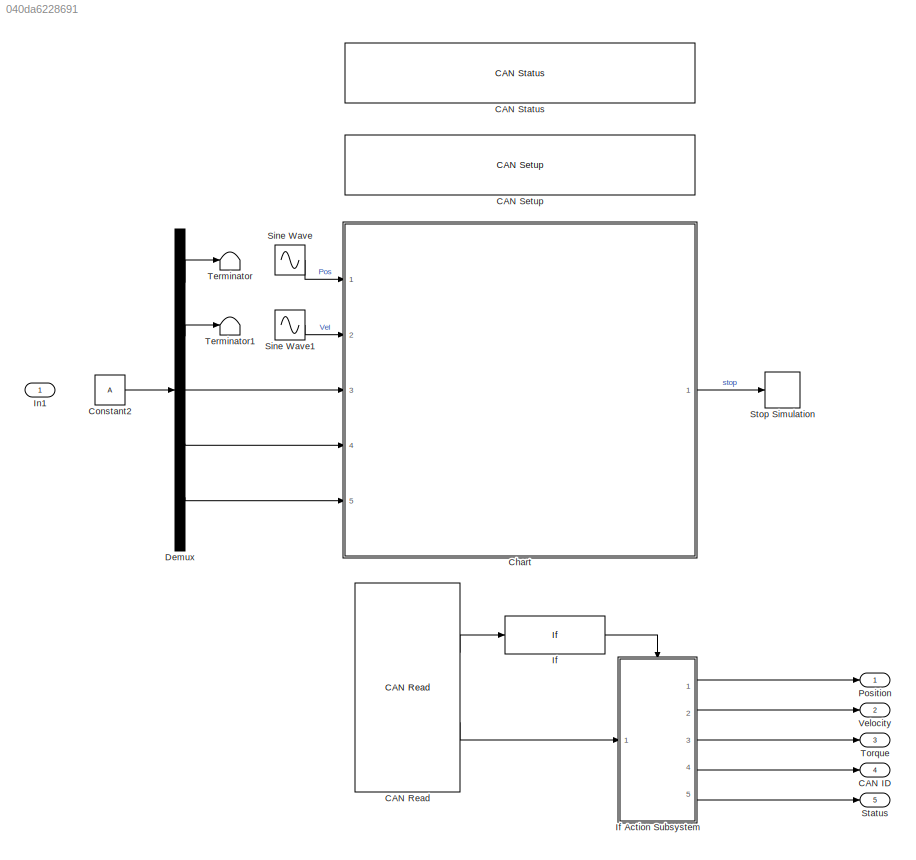
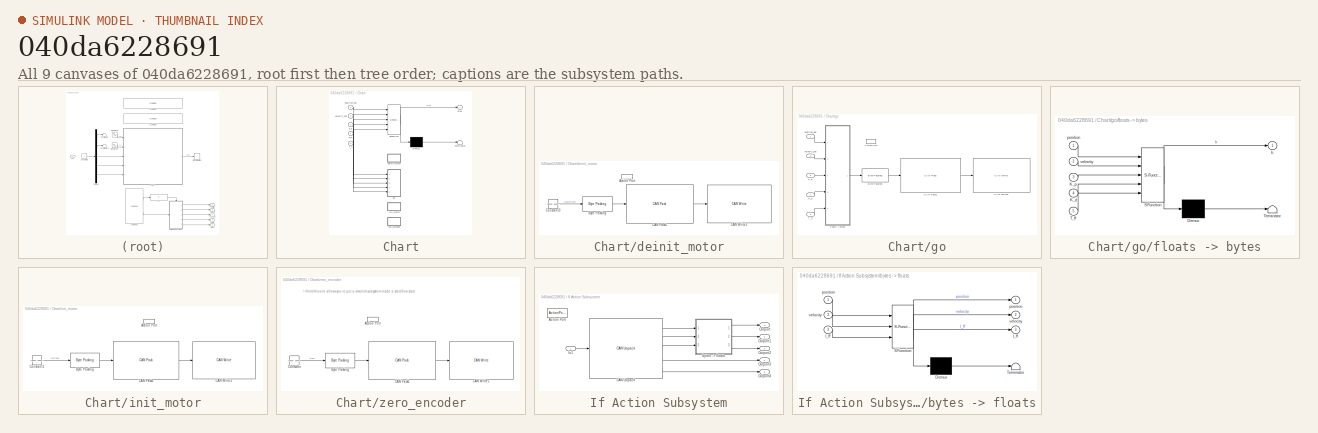
[diagram: thumbnail index - all 9 canvases of the model, root first then tree order]
MODEL slx_040da6228691
KIND model
CONFIG AbsTol = auto
CONFIG EnableMultiTasking = off
CONFIG FixedStep = .001
CONFIG MaxStep = auto
CONFIG MinStep = auto
CONFIG RelTol = 1e-3
CONFIG SampleTimeConstraint = Unconstrained
CONFIG SolverName = FixedStepAuto
CONFIG StartTime = 0.0
CONFIG StopTime = 30.0
BLOCK [Outport] CAN ID
  Port = 4
BLOCK [Reference] CAN Read  REF=speedgoatlib_IO691/CAN Read
  Ports = [0, 2]
  SourceBlock = speedgoatlib_IO691/CAN Read
  SourceProductName = Simulink Real-Time: Speedgoat I/O Blockset
  SourceType = read_IO691
BLOCK [Reference] CAN Setup   REF=speedgoatlib_IO691/CAN Setup 
  Ports = []
  SourceBlock = speedgoatlib_IO691/CAN Setup
  SourceProductName = Simulink Real-Time: Speedgoat I/O Blockset
  SourceType = setup_IO691
BLOCK [Reference] CAN Status  REF=speedgoatlib_IO691/CAN Status
  Ports = []
  SourceBlock = speedgoatlib_IO691/CAN Status
  SourceProductName = Simulink Real-Time: Speedgoat I/O Blockset
  SourceType = status_IO691
  UserDataPersistent = on
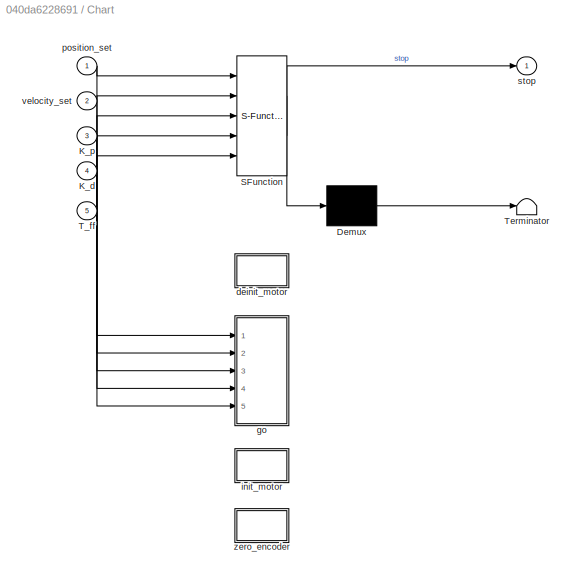
BLOCK [SubSystem] Chart
  ErrorFcn = Stateflow.Translate.translate
  PermitHierarchicalResolution = ExplicitOnly
  Ports = [5, 1]
  RequestExecContextInheritance = off
  SFBlockType = Chart
  TreatAsAtomicUnit = on
BLOCK [Demux] Chart/ Demux 
  Outputs = 1
  Ports = [1, 1]
BLOCK [S-Function] Chart/ SFunction 
  EnableBusSupport = on
  FunctionName = sf_sfun
  PortCounts = [5 2]
  Ports = [5, 2]
  SFcnIsStateOwnerBlock = off
  SFunctionDeploymentMode = off
  Tag = Stateflow S-Function 3
BLOCK [Terminator] Chart/ Terminator 
BLOCK [Inport] Chart/K_d
  Port = 4
BLOCK [Inport] Chart/K_p
  Port = 3
BLOCK [Inport] Chart/T_ff
  Port = 5
BLOCK [SubSystem] Chart/deinit_motor
  Ports = [0, 0, 0, 0, 0, 0, 0, 1]
  PreDeleteFcn = Stateflow.SLINSF.SimulinkMan.removePreDeleteFcn
  RequestExecContextInheritance = off
  UndoDeleteFcn = Stateflow.SLINSF.SimulinkMan.restorePreDeleteFcn
BLOCK [ActionPort] Chart/deinit_motor/Action Port
  CopyFcn = Stateflow.SLINSF.SimulinkMan.removeBlockPreDeleteFcn
  PreDeleteFcn = Stateflow.SLINSF.SimulinkMan.unsafePredeleteFcn
BLOCK [Reference] Chart/deinit_motor/Byte Packing  REF=slrealtimeutilitieslib/Byte Packing
  Ports = [1, 1]
  SourceBlock = slrealtimeutilitieslib/Byte Packing
  SourceProductBaseCode = XP
  SourceType = slrealtimebytepacking
BLOCK [Reference] Chart/deinit_motor/CAN Pack1  REF=canmsglib/CAN Pack
  Ports = [1, 1]
  SourceBlock = canmsglib/CAN Pack
  SourceProductBaseCode = ME,XP,VN
  SourceType = CAN Pack
BLOCK [Reference] Chart/deinit_motor/CAN Write1  REF=speedgoatlib_IO691/CAN Write
  Ports = [1]
  SourceBlock = speedgoatlib_IO691/CAN Write
  SourceProductName = Simulink Real-Time: Speedgoat I/O Blockset
  SourceType = write_IO691
BLOCK [Constant] Chart/deinit_motor/Constant3
  Value = [0xFF, 0xFF, 0xFF, 0xFF, 0xFF, 0xFF, 0xFF, 0xFD]
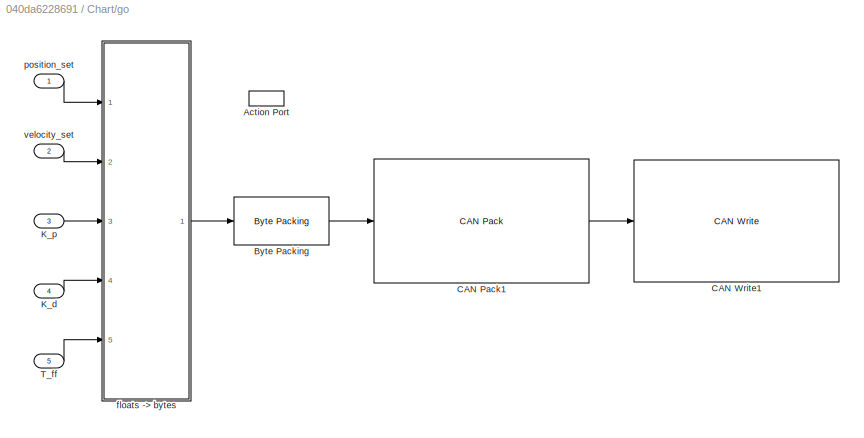
BLOCK [SubSystem] Chart/go
  Ports = [5, 0, 0, 0, 0, 0, 0, 1]
  PreDeleteFcn = Stateflow.SLINSF.SimulinkMan.removePreDeleteFcn
  RequestExecContextInheritance = off
  UndoDeleteFcn = Stateflow.SLINSF.SimulinkMan.restorePreDeleteFcn
BLOCK [ActionPort] Chart/go/Action Port
  CopyFcn = Stateflow.SLINSF.SimulinkMan.removeBlockPreDeleteFcn
  PreDeleteFcn = Stateflow.SLINSF.SimulinkMan.unsafePredeleteFcn
BLOCK [Reference] Chart/go/Byte Packing  REF=slrealtimeutilitieslib/Byte Packing
  Ports = [1, 1]
  SourceBlock = slrealtimeutilitieslib/Byte Packing
  SourceProductBaseCode = XP
  SourceType = slrealtimebytepacking
BLOCK [Reference] Chart/go/CAN Pack1  REF=canmsglib/CAN Pack
  Ports = [1, 1]
  SourceBlock = canmsglib/CAN Pack
  SourceProductBaseCode = ME,XP,VN
  SourceType = CAN Pack
BLOCK [Reference] Chart/go/CAN Write1  REF=speedgoatlib_IO691/CAN Write
  Ports = [1]
  SourceBlock = speedgoatlib_IO691/CAN Write
  SourceProductName = Simulink Real-Time: Speedgoat I/O Blockset
  SourceType = write_IO691
BLOCK [Inport] Chart/go/K_d
  Port = 4
BLOCK [Inport] Chart/go/K_p
  Port = 3
BLOCK [Inport] Chart/go/T_ff
  Port = 5
BLOCK [SubSystem] Chart/go/floats -> bytes
  ErrorFcn = Stateflow.Translate.translate
  PermitHierarchicalResolution = ExplicitOnly
  Ports = [5, 1]
  RequestExecContextInheritance = off
  SFBlockType = MATLAB Function
  TreatAsAtomicUnit = on
BLOCK [Demux] Chart/go/floats -> bytes/ Demux 
  Outputs = 1
  Ports = [1, 1]
BLOCK [S-Function] Chart/go/floats -> bytes/ SFunction 
  EnableBusSupport = on
  FunctionName = sf_sfun
  PortCounts = [5 2]
  Ports = [5, 2]
  SFcnIsStateOwnerBlock = off
  SFunctionDeploymentMode = off
  Tag = Stateflow S-Function 1
BLOCK [Terminator] Chart/go/floats -> bytes/ Terminator 
BLOCK [Inport] Chart/go/floats -> bytes/K_d
  Port = 4
BLOCK [Inport] Chart/go/floats -> bytes/K_p
  Port = 3
BLOCK [Inport] Chart/go/floats -> bytes/T_ff
  Port = 5
BLOCK [Outport] Chart/go/floats -> bytes/b
BLOCK [Inport] Chart/go/floats -> bytes/position
BLOCK [Inport] Chart/go/floats -> bytes/velocity
  Port = 2
BLOCK [Inport] Chart/go/position_set
BLOCK [Inport] Chart/go/velocity_set
  Port = 2
BLOCK [SubSystem] Chart/init_motor
  Ports = [0, 0, 0, 0, 0, 0, 0, 1]
  PreDeleteFcn = Stateflow.SLINSF.SimulinkMan.removePreDeleteFcn
  RequestExecContextInheritance = off
  UndoDeleteFcn = Stateflow.SLINSF.SimulinkMan.restorePreDeleteFcn
BLOCK [ActionPort] Chart/init_motor/Action Port
  CopyFcn = Stateflow.SLINSF.SimulinkMan.removeBlockPreDeleteFcn
  PreDeleteFcn = Stateflow.SLINSF.SimulinkMan.unsafePredeleteFcn
BLOCK [Reference] Chart/init_motor/Byte Packing  REF=slrealtimeutilitieslib/Byte Packing
  Ports = [1, 1]
  SourceBlock = slrealtimeutilitieslib/Byte Packing
  SourceProductBaseCode = XP
  SourceType = slrealtimebytepacking
BLOCK [Reference] Chart/init_motor/CAN Pack1  REF=canmsglib/CAN Pack
  Ports = [1, 1]
  SourceBlock = canmsglib/CAN Pack
  SourceProductBaseCode = ME,XP,VN
  SourceType = CAN Pack
BLOCK [Reference] Chart/init_motor/CAN Write1  REF=speedgoatlib_IO691/CAN Write
  Ports = [1]
  SourceBlock = speedgoatlib_IO691/CAN Write
  SourceProductName = Simulink Real-Time: Speedgoat I/O Blockset
  SourceType = write_IO691
BLOCK [Constant] Chart/init_motor/Constant1
  Value = [0xFF, 0xFF, 0xFF, 0xFF, 0xFF, 0xFF, 0xFF, 0xFC]
BLOCK [Inport] Chart/position_set
BLOCK [Outport] Chart/stop
BLOCK [Inport] Chart/velocity_set
  Port = 2
BLOCK [SubSystem] Chart/zero_encoder
  Ports = [0, 0, 0, 0, 0, 0, 0, 1]
  PreDeleteFcn = Stateflow.SLINSF.SimulinkMan.removePreDeleteFcn
  RequestExecContextInheritance = off
  UndoDeleteFcn = Stateflow.SLINSF.SimulinkMan.restorePreDeleteFcn
BLOCK [ActionPort] Chart/zero_encoder/Action Port
  CopyFcn = Stateflow.SLINSF.SimulinkMan.removeBlockPreDeleteFcn
  PreDeleteFcn = Stateflow.SLINSF.SimulinkMan.unsafePredeleteFcn
BLOCK [Reference] Chart/zero_encoder/Byte Packing  REF=slrealtimeutilitieslib/Byte Packing
  Ports = [1, 1]
  SourceBlock = slrealtimeutilitieslib/Byte Packing
  SourceProductBaseCode = XP
  SourceType = slrealtimebytepacking
BLOCK [Reference] Chart/zero_encoder/CAN Pack1  REF=canmsglib/CAN Pack
  Ports = [1, 1]
  SourceBlock = canmsglib/CAN Pack
  SourceProductBaseCode = ME,XP,VN
  SourceType = CAN Pack
BLOCK [Reference] Chart/zero_encoder/CAN Write1  REF=speedgoatlib_IO691/CAN Write
  Ports = [1]
  SourceBlock = speedgoatlib_IO691/CAN Write
  SourceProductName = Simulink Real-Time: Speedgoat I/O Blockset
  SourceType = write_IO691
BLOCK [Constant] Chart/zero_encoder/Constant
  Value = [0xFF, 0xFF, 0xFF, 0xFF, 0xFF, 0xFF, 0xFF, 0xFE]
BLOCK [Constant] Constant2
  Value = A
BLOCK [Demux] Demux
  Outputs = 5
  Ports = [1, 5]
BLOCK [If] If
  IfExpression = u1 ~= 0
  Ports = [1, 1]
  ShowElse = off
BLOCK [SubSystem] If Action Subsystem
  Ports = [1, 5, 0, 0, 0, 0, 0, 1]
  RequestExecContextInheritance = off
  TreatAsAtomicUnit = on
BLOCK [ActionPort] If Action Subsystem/Action Port
  ActionPortLabel = if(u1 ~= 0)
BLOCK [Reference] If Action Subsystem/CAN Unpack  REF=canmsglib/CAN Unpack
  Ports = [1, 5]
  SourceBlock = canmsglib/CAN Unpack
  SourceProductBaseCode = ME,XP,VN
  SourceType = CAN Unpack
BLOCK [Inport] If Action Subsystem/In1
BLOCK [Outport] If Action Subsystem/Outport
BLOCK [Outport] If Action Subsystem/Outport1
  Port = 2
BLOCK [Outport] If Action Subsystem/Outport2
  Port = 3
BLOCK [Outport] If Action Subsystem/Outport3
  Port = 4
BLOCK [Outport] If Action Subsystem/Outport4
  Port = 5
BLOCK [SubSystem] If Action Subsystem/bytes -> floats
  ErrorFcn = Stateflow.Translate.translate
  PermitHierarchicalResolution = ExplicitOnly
  Ports = [3, 3]
  RequestExecContextInheritance = off
  SFBlockType = MATLAB Function
  TreatAsAtomicUnit = on
BLOCK [Demux] If Action Subsystem/bytes -> floats/ Demux 
  Outputs = 1
  Ports = [1, 1]
BLOCK [S-Function] If Action Subsystem/bytes -> floats/ SFunction 
  EnableBusSupport = on
  FunctionName = sf_sfun
  PortCounts = [3 4]
  Ports = [3, 4]
  SFcnIsStateOwnerBlock = off
  SFunctionDeploymentMode = off
  Tag = Stateflow S-Function 2
BLOCK [Terminator] If Action Subsystem/bytes -> floats/ Terminator 
BLOCK [Outport] If Action Subsystem/bytes -> floats/I_ff
  Port = 3
BLOCK [Inport] If Action Subsystem/bytes -> floats/I_ff 
  Port = 3
BLOCK [Outport] If Action Subsystem/bytes -> floats/position
BLOCK [Inport] If Action Subsystem/bytes -> floats/position 
BLOCK [Outport] If Action Subsystem/bytes -> floats/velocity
  Port = 2
BLOCK [Inport] If Action Subsystem/bytes -> floats/velocity 
  Port = 2
BLOCK [Inport] In1
BLOCK [Outport] Position
BLOCK [Sin] Sine Wave
  Amplitude = pi/4
  Frequency = 2*pi/3
  Ports = [0, 1]
  SampleTime = 0
BLOCK [Sin] Sine Wave1
  Amplitude = pi/4
  Frequency = 2*pi/3
  Phase = pi/2
  Ports = [0, 1]
  SampleTime = 0
BLOCK [Outport] Status
  Port = 5
BLOCK [Stop] Stop Simulation
BLOCK [Terminator] Terminator
BLOCK [Terminator] Terminator1
BLOCK [Outport] Torque
  Port = 3
BLOCK [Outport] Velocity
  Port = 2
ANNOTATION Chart/zero_encoder: I think this one allows you to put a simulink subsystem inside a stateflow state
LINE CAN Read:1 -> If:1
LINE CAN Read:2 -> If Action Subsystem:1
LINE Chart:1 -> Stop Simulation:1
LINE Constant2:1 -> Demux:1
LINE Demux:1 -> Terminator:1
LINE Demux:2 -> Terminator1:1
LINE Demux:3 -> Chart:3
LINE Demux:4 -> Chart:4
LINE Demux:5 -> Chart:5
LINE If Action Subsystem/CAN Unpack:1 -> If Action Subsystem/bytes -> floats:1
LINE If Action Subsystem/CAN Unpack:2 -> If Action Subsystem/bytes -> floats:2
LINE If Action Subsystem/CAN Unpack:3 -> If Action Subsystem/bytes -> floats:3
LINE If Action Subsystem/CAN Unpack:4 -> If Action Subsystem/Outport3:1
LINE If Action Subsystem/CAN Unpack:5 -> If Action Subsystem/Outport4:1
LINE If Action Subsystem/In1:1 -> If Action Subsystem/CAN Unpack:1
LINE If Action Subsystem/bytes -> floats:1 -> If Action Subsystem/Outport:1
LINE If Action Subsystem/bytes -> floats:2 -> If Action Subsystem/Outport1:1
LINE If Action Subsystem/bytes -> floats:3 -> If Action Subsystem/Outport2:1
LINE If Action Subsystem:1 -> Position:1
LINE If Action Subsystem:2 -> Velocity:1
LINE If Action Subsystem:3 -> Torque:1
LINE If Action Subsystem:4 -> CAN ID:1
LINE If Action Subsystem:5 -> Status:1
LINE If:1 -> If Action Subsystem:ifaction
LINE Sine Wave1:1 -> Chart:2
LINE Sine Wave:1 -> Chart:1
CHART Chart/go/floats -> bytes states=1 transitions=1
  STATE_LABEL 'eML_blk_kernel()'
  STATE_LABEL 'SCRIPT:\nfunction b = fcn(position, velocity, K_p, K_d, T_ff)\n\nP_MIN  =-12.5*8;  % [rad]\nP_MAX  = 12.5*8;  % [rad]\nV_MIN  =-30;    % [rad/s]\nV_MAX  = 30;    % [rad/s]\nKP_MIN = 0;     % [Nm/rad]\nKP_MAX = 500;   % [Nm/rad]\nKD_MIN = 0;     % [Nm*s/rad\nKD_MAX = 5;     % [Nm*s/rad\nT_MIN  =-18;    % [Nm]\nT_MAX  = 18;    % [Nm]\n\nposition = floor((max(min(position,P_MAX) ,P_MIN)  - P_MIN )*65535/(P_MAX  - ...<+886ch>'
CHART If Action
Subsystem/bytes -> floats states=1 transitions=1
  STATE_LABEL 'eML_blk_kernel()'
  STATE_LABEL 'SCRIPT:\nfunction [position, velocity, I_ff] = fcn(position, velocity, I_ff)\n\nP_MIN  =-4*pi*8;  % [rad]\nP_MAX  = 4*pi*8;  % [rad]\nV_MIN  =-30;    % [rad/s]\nV_MAX  = 30;    % [rad/s]\nI_MIN  =-40;    % []\nI_MAX  = 40;    % []\n\nposition = position*(P_MAX  - P_MIN)/65535+ P_MIN;\nvelocity = velocity*(V_MAX  - V_MIN)/4095 + V_MIN;\nI_ff     = I_ff*(I_MAX  - I_MIN)/4095 + I_MIN;'
CHART Chart states=11 transitions=6
  STATE_LABEL 'zero_encoder'
  STATE_LABEL 'This state zeros out the encoder by sending the special CAN message defined by the motor interface'
  STATE_LABEL 'These are called "simulink states" which allow you to use normal blocks isntead of code to implement stateflow states'
  STATE_LABEL 'wait'
  STATE_LABEL 'Wait for a moment for the encoder to zero out'
  STATE_LABEL 'init_motor'
  STATE_LABEL 'This state initializes the motor by sending the special CAN message defined by the motor interface. Afterwards the motor will be able to recieve commands'
  STATE_LABEL 'go'
  STATE_LABEL 'In the go state the program continuously sends commands to the motor based on the gain and setpoint defined in the base model'
  STATE_LABEL 'deinit_motor'
  STATE_LABEL '<!DOCTYPE HTML PUBLIC "-//W3C//DTD HTML 4.0//EN" "http://www.w3.org/TR/REC-html40/strict.dtd">\n<html><head><meta name="qrichtext" content="1" /><style type="text/css">\np, li { white-space: pre-wrap; }\n</style></head><body align="left" style=" font-family:\'Helvetica\'; font-size:12px; font-weight:400; font-style:normal;">\n<p align="left" style=" margin-top:0px; margin-bottom:0px; margin-left:0px; ma...<+417ch>'
CHART  states=0 transitions=0
CHART  states=0 transitions=0
CHART  states=0 transitions=0
